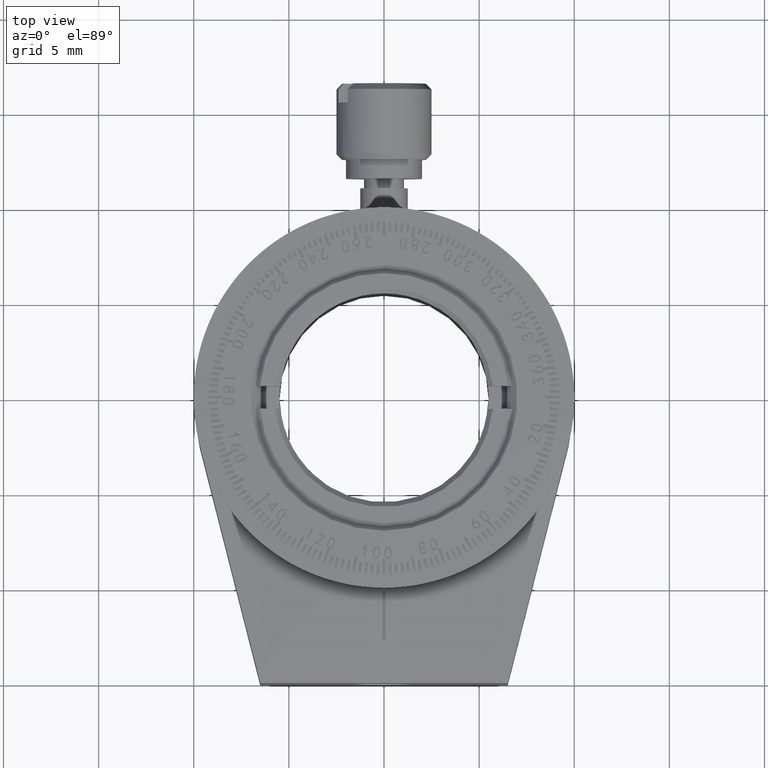
[diagram: clean part render]
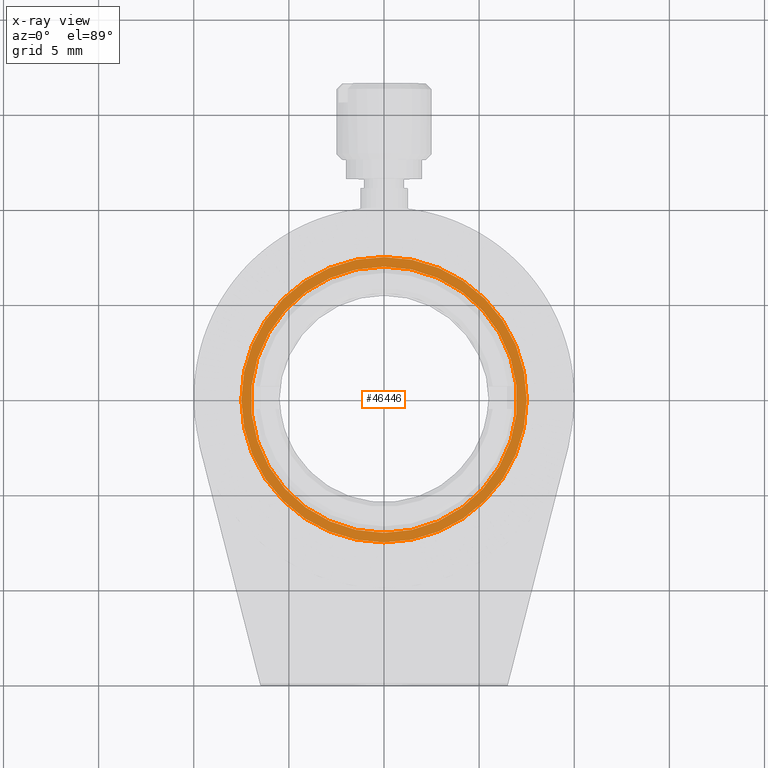
[diagram: x-ray — body ghosted, one internal face saturated and labeled with its STEP entity id]
A machine part, top view, then the same camera in x-ray: the body is ghosted and one INTERNAL B-rep face — a face not visible from any outside direction — is saturated and labeled: STEP entity #46446.
In plain terms, the highlighted planar face has unit normal (0, -0, -1).
Its self-contained STEP definition (entity closure, byte-faithful):
#4228 = EDGE_LOOP ( 'NONE', ( #35466, #31901 ) ) ;
#6346 = FACE_OUTER_BOUND ( 'NONE', #18045, .T. ) ;
#6668 = DIRECTION ( 'NONE',  ( 1.665334536937733825E-15, 1.000000000000000000, 4.387221921710473913E-31 ) ) ;
#9225 = DIRECTION ( 'NONE',  ( -7.347880794884131569E-16, -7.667831074058618192E-31, 1.000000000000000000 ) ) ;
#9244 = CIRCLE ( 'NONE', #25487, 7.000000000000034639 ) ;
#11698 = VERTEX_POINT ( 'NONE', #33618 ) ;
#13160 = CARTESIAN_POINT ( 'NONE',  ( 2.674005000953674016E-15, 4.408105649996445928E-30, 2.000000000000000888 ) ) ;
#13179 = EDGE_CURVE ( 'NONE', #11698, #62316, #23190, .T. ) ;
#15362 = DIRECTION ( 'NONE',  ( 7.347880794884131569E-16, 7.667831074058618192E-31, -1.000000000000000000 ) ) ;
#16566 = CIRCLE ( 'NONE', #47061, 7.500000000000038192 ) ;
#18045 = EDGE_LOOP ( 'NONE', ( #27046, #61299 ) ) ;
#23190 = CIRCLE ( 'NONE', #37412, 7.500000000000038192 ) ;
#24403 = CIRCLE ( 'NONE', #29443, 7.000000000000034639 ) ;
#24614 = CARTESIAN_POINT ( 'NONE',  ( 2.674005000953674016E-15, 4.408105649996445928E-30, 2.000000000000000888 ) ) ;
#25487 = AXIS2_PLACEMENT_3D ( 'NONE', #13160, #57093, #40630 ) ;
#27046 = ORIENTED_EDGE ( 'NONE', *, *, #59613, .F. ) ;
#28718 = CARTESIAN_POINT ( 'NONE',  ( 1.371902335994413722E-14, 6.999999999999999112, 2.000000000000000888 ) ) ;
#29443 = AXIS2_PLACEMENT_3D ( 'NONE', #34066, #9225, #37883 ) ;
#30098 = CARTESIAN_POINT ( 'NONE',  ( -8.983336757610520145E-15, -7.000000000000034639, 2.000000000000000888 ) ) ;
#30183 = EDGE_CURVE ( 'NONE', #61110, #39744, #9244, .T. ) ;
#31580 = CARTESIAN_POINT ( 'NONE',  ( 2.674005000953674016E-15, 4.408105649996445928E-30, 2.000000000000000888 ) ) ;
#31901 = ORIENTED_EDGE ( 'NONE', *, *, #30183, .F. ) ;
#33618 = CARTESIAN_POINT ( 'NONE',  ( 1.678054780286117769E-14, 7.500000000000000000, 2.000000000000000888 ) ) ;
#34066 = CARTESIAN_POINT ( 'NONE',  ( 2.674005000953674016E-15, 4.408105649996445928E-30, 2.000000000000000888 ) ) ;
#35466 = ORIENTED_EDGE ( 'NONE', *, *, #62914, .F. ) ;
#36668 = DIRECTION ( 'NONE',  ( 1.665334536937733825E-15, 1.000000000000000000, 0.000000000000000000 ) ) ;
#37412 = AXIS2_PLACEMENT_3D ( 'NONE', #31580, #55478, #36668 ) ;
#37883 = DIRECTION ( 'NONE',  ( -1.665334536937733825E-15, -1.000000000000000000, 0.000000000000000000 ) ) ;
#39744 = VERTEX_POINT ( 'NONE', #30098 ) ;
#40630 = DIRECTION ( 'NONE',  ( -1.665334536937733825E-15, -1.000000000000000000, 0.000000000000000000 ) ) ;
#44034 = DIRECTION ( 'NONE',  ( 1.665334536937733825E-15, 1.000000000000000000, 0.000000000000000000 ) ) ;
#46446 = ADVANCED_FACE ( 'NONE', ( #55688, #6346 ), #59216, .F. ) ;
#47061 = AXIS2_PLACEMENT_3D ( 'NONE', #24614, #15362, #44034 ) ;
#52129 = CARTESIAN_POINT ( 'NONE',  ( -9.117955350565342301E-15, -7.500000000000000000, 2.000000000000000888 ) ) ;
#54330 = AXIS2_PLACEMENT_3D ( 'NONE', #55384, #59836, #6668 ) ;
#55384 = CARTESIAN_POINT ( 'NONE',  ( -8.000000000000017764, -7.105427357601017636E-15, 1.999999999999994893 ) ) ;
#55478 = DIRECTION ( 'NONE',  ( 7.347880794884131569E-16, 7.667831074058618192E-31, -1.000000000000000000 ) ) ;
#55688 = FACE_BOUND ( 'NONE', #4228, .T. ) ;
#57093 = DIRECTION ( 'NONE',  ( -7.347880794884131569E-16, -7.667831074058618192E-31, 1.000000000000000000 ) ) ;
#59216 = PLANE ( 'NONE',  #54330 ) ;
#59613 = EDGE_CURVE ( 'NONE', #62316, #11698, #16566, .T. ) ;
#59836 = DIRECTION ( 'NONE',  ( 7.347880794884131569E-16, -7.849457739311558122E-31, -1.000000000000000000 ) ) ;
#61110 = VERTEX_POINT ( 'NONE', #28718 ) ;
#61299 = ORIENTED_EDGE ( 'NONE', *, *, #13179, .F. ) ;
#62316 = VERTEX_POINT ( 'NONE', #52129 ) ;
#62914 = EDGE_CURVE ( 'NONE', #39744, #61110, #24403, .T. ) ;